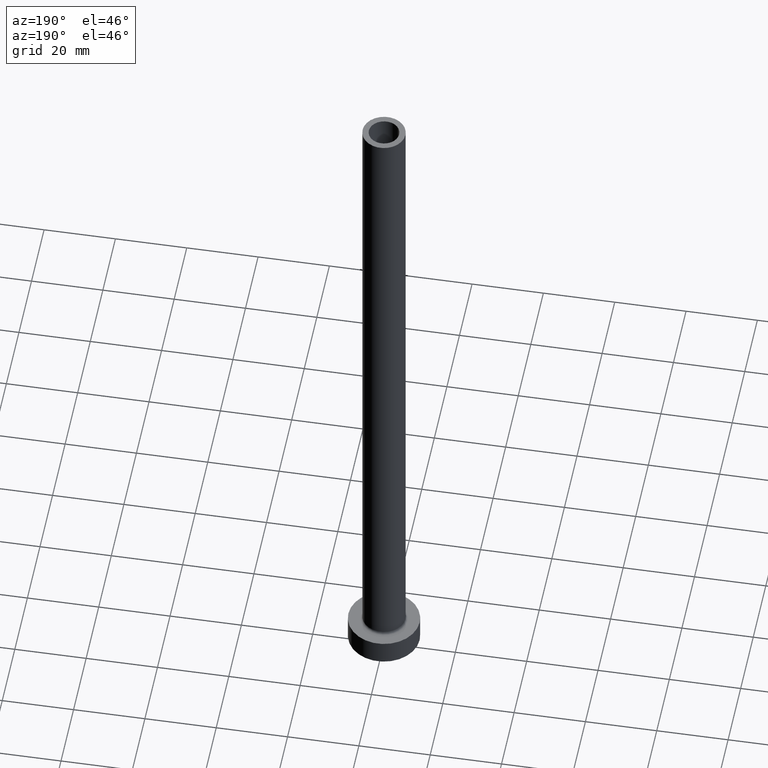
[diagram: clean part render]
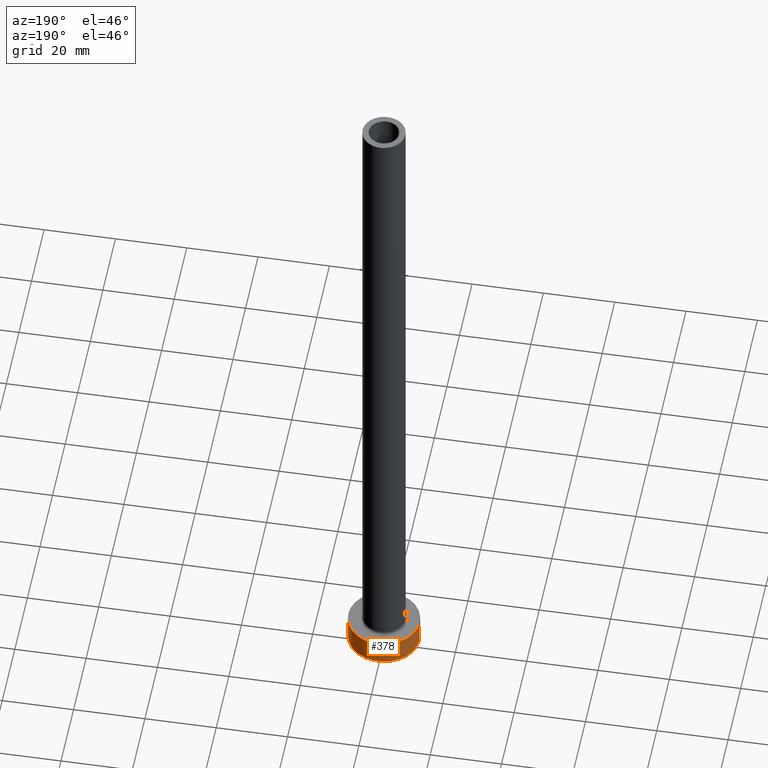
[diagram: same view with one face highlighted and labeled with its STEP entity id]
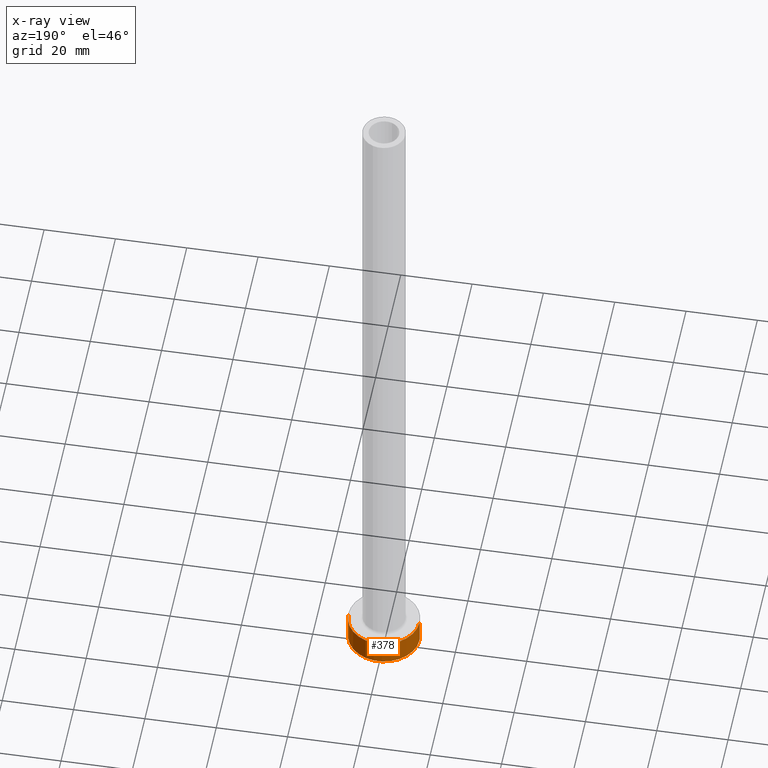
[diagram: x-ray of the same camera — body ghosted, the highlighted face saturated]
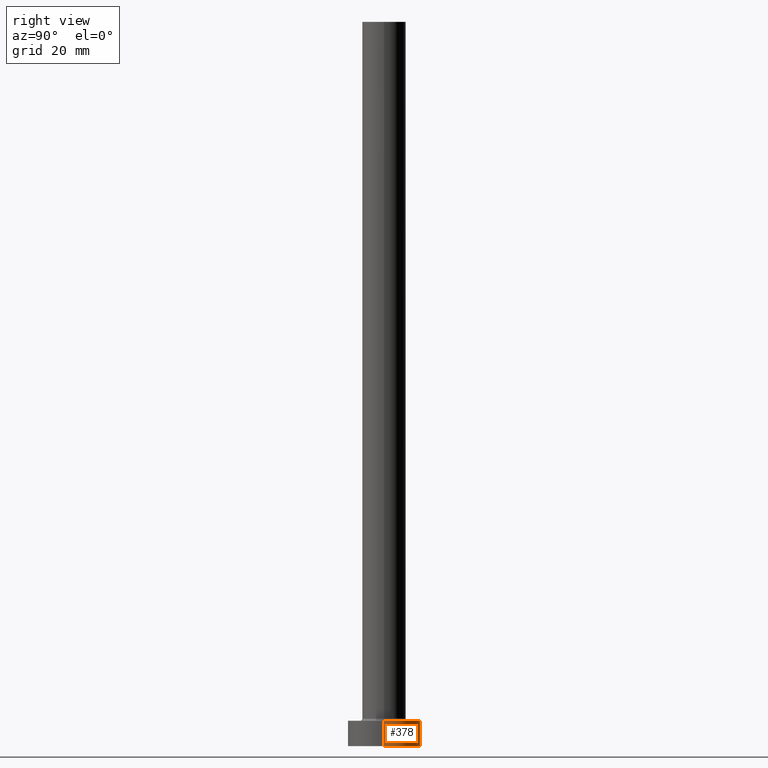
[diagram: same view with one face highlighted and labeled with its STEP entity id]
A machine part, auxiliary view. The second image highlights one B-rep face of the part: STEP entity #378.
The next image is the same camera in x-ray: the body ghosted, the highlighted face saturated — about 0% of this face is hidden behind the body in this view.
A second angle (right view) of the same face is appended — the face is thin or edge-on in the first view.
In plain terms, the highlighted cylindrical surface (edge-blend (fillet) strip) has radius 10 mm, axis along (-0, -0, -1).
Its self-contained STEP definition (entity closure, byte-faithful):
#3 = ORIENTED_EDGE ( 'NONE', *, *, #305, .T. ) ;
#9 = EDGE_CURVE ( 'NONE', #129, #127, #275, .T. ) ;
#41 = CARTESIAN_POINT ( 'NONE',  ( 10.00000000000000000, 1.224646799147353256E-15, 0.000000000000000000 ) ) ;
#57 = DIRECTION ( 'NONE',  ( 0.000000000000000000, 0.000000000000000000, 1.000000000000000000 ) ) ;
#62 = DIRECTION ( 'NONE',  ( -0.000000000000000000, -0.000000000000000000, -1.000000000000000000 ) ) ;
#89 = DIRECTION ( 'NONE',  ( 0.000000000000000000, 0.000000000000000000, 1.000000000000000000 ) ) ;
#120 = AXIS2_PLACEMENT_3D ( 'NONE', #418, #57, #131 ) ;
#127 = VERTEX_POINT ( 'NONE', #41 ) ;
#129 = VERTEX_POINT ( 'NONE', #251 ) ;
#131 = DIRECTION ( 'NONE',  ( 1.000000000000000000, 0.000000000000000000, 0.000000000000000000 ) ) ;
#134 = LINE ( 'NONE', #234, #377 ) ;
#155 = AXIS2_PLACEMENT_3D ( 'NONE', #457, #455, #270 ) ;
#161 = CARTESIAN_POINT ( 'NONE',  ( 0.000000000000000000, 0.000000000000000000, 7.000000000000000000 ) ) ;
#162 = VECTOR ( 'NONE', #321, 1000.000000000000000 ) ;
#165 = CYLINDRICAL_SURFACE ( 'NONE', #155, 10.00000000000000000 ) ;
#171 = CARTESIAN_POINT ( 'NONE',  ( 10.00000000000000000, 1.224646799147353256E-15, 7.000000000000000000 ) ) ;
#192 = VERTEX_POINT ( 'NONE', #360 ) ;
#234 = CARTESIAN_POINT ( 'NONE',  ( -10.00000000000000000, 0.000000000000000000, 7.000000000000000000 ) ) ;
#239 = ORIENTED_EDGE ( 'NONE', *, *, #426, .F. ) ;
#251 = CARTESIAN_POINT ( 'NONE',  ( 10.00000000000000000, 1.224646799147353256E-15, 7.000000000000000000 ) ) ;
#263 = CARTESIAN_POINT ( 'NONE',  ( -10.00000000000000000, 0.000000000000000000, 7.000000000000000000 ) ) ;
#270 = DIRECTION ( 'NONE',  ( -1.000000000000000000, 0.000000000000000000, 0.000000000000000000 ) ) ;
#275 = LINE ( 'NONE', #171, #162 ) ;
#305 = EDGE_CURVE ( 'NONE', #127, #192, #397, .T. ) ;
#307 = FACE_OUTER_BOUND ( 'NONE', #417, .T. ) ;
#315 = ORIENTED_EDGE ( 'NONE', *, *, #355, .F. ) ;
#321 = DIRECTION ( 'NONE',  ( -0.000000000000000000, -0.000000000000000000, -1.000000000000000000 ) ) ;
#353 = VERTEX_POINT ( 'NONE', #263 ) ;
#355 = EDGE_CURVE ( 'NONE', #129, #353, #358, .T. ) ;
#358 = CIRCLE ( 'NONE', #430, 10.00000000000000000 ) ;
#360 = CARTESIAN_POINT ( 'NONE',  ( -10.00000000000000000, 0.000000000000000000, 0.000000000000000000 ) ) ;
#370 = ORIENTED_EDGE ( 'NONE', *, *, #9, .T. ) ;
#377 = VECTOR ( 'NONE', #62, 1000.000000000000000 ) ;
#378 = ADVANCED_FACE ( 'NONE', ( #307 ), #165, .T. ) ;
#397 = CIRCLE ( 'NONE', #120, 10.00000000000000000 ) ;
#416 = DIRECTION ( 'NONE',  ( 1.000000000000000000, 0.000000000000000000, 0.000000000000000000 ) ) ;
#417 = EDGE_LOOP ( 'NONE', ( #315, #370, #3, #239 ) ) ;
#418 = CARTESIAN_POINT ( 'NONE',  ( 0.000000000000000000, 0.000000000000000000, 0.000000000000000000 ) ) ;
#426 = EDGE_CURVE ( 'NONE', #353, #192, #134, .T. ) ;
#430 = AXIS2_PLACEMENT_3D ( 'NONE', #161, #89, #416 ) ;
#455 = DIRECTION ( 'NONE',  ( -0.000000000000000000, -0.000000000000000000, -1.000000000000000000 ) ) ;
#457 = CARTESIAN_POINT ( 'NONE',  ( 0.000000000000000000, 0.000000000000000000, 7.000000000000000000 ) ) ;